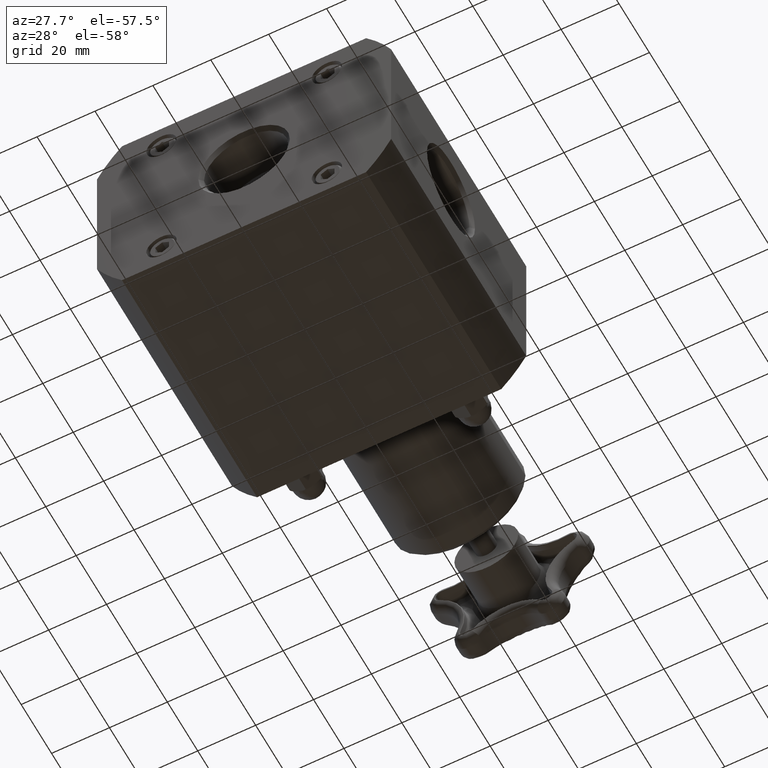
[diagram: clean part render]
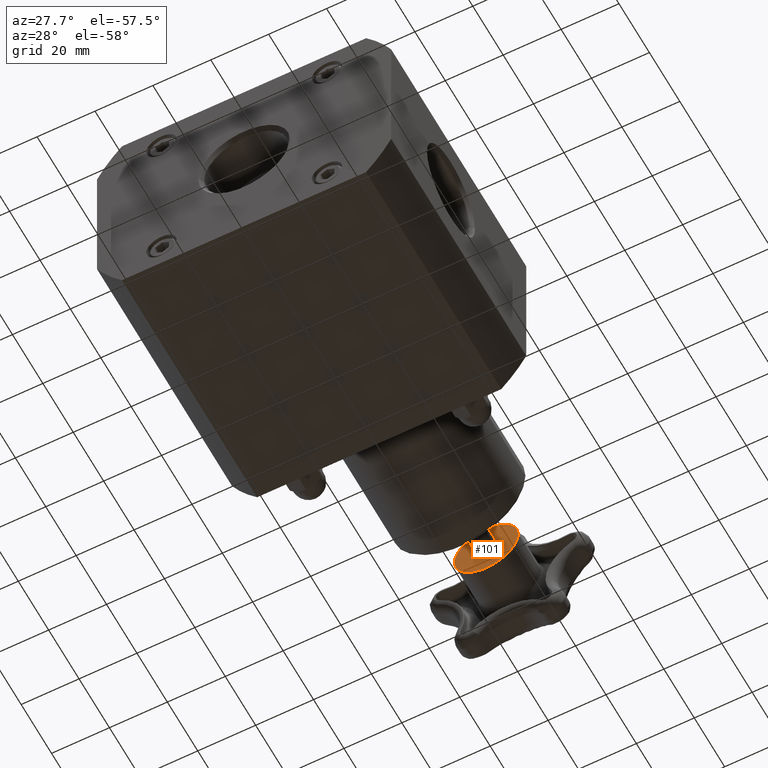
[diagram: same view with one face highlighted and labeled with its STEP entity id]
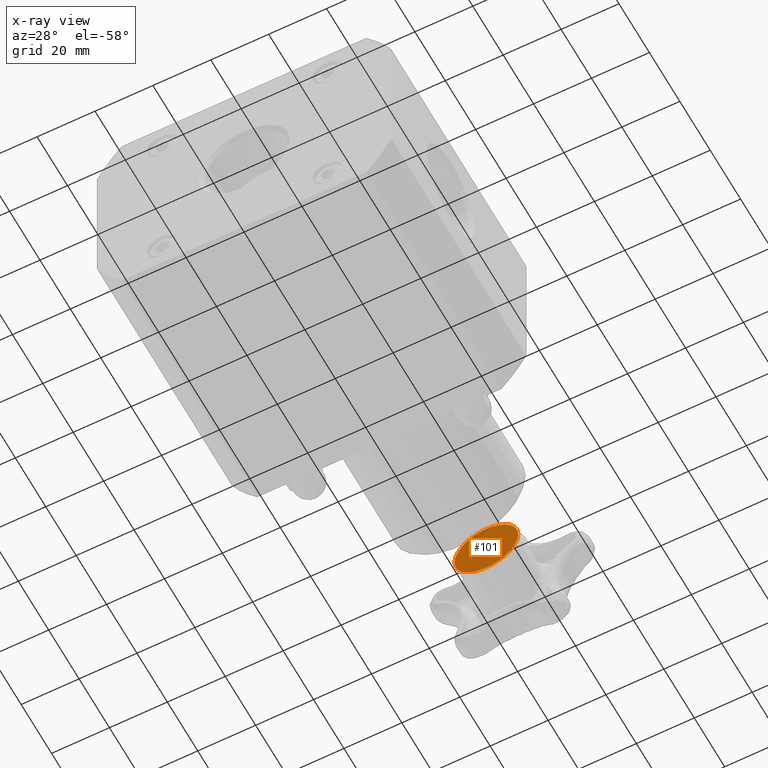
[diagram: x-ray of the same camera — body ghosted, the highlighted face saturated]
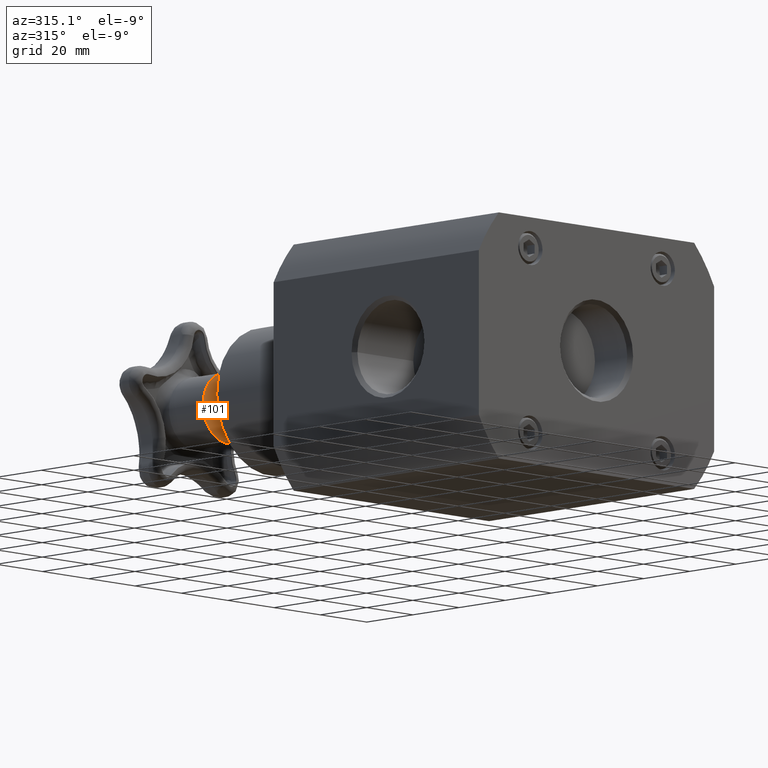
[diagram: same view with one face highlighted and labeled with its STEP entity id]
A machine part, auxiliary view. The second image highlights one B-rep face of the part: STEP entity #101.
The next image is the same camera in x-ray: the body ghosted, the highlighted face saturated — about 4% of this face is hidden behind the body in this view.
A second angle (auxiliary view) of the same face is appended — the face is thin or edge-on in the first view.
In plain terms, the highlighted planar face has unit normal (0, 1, 0).
Its self-contained STEP definition (entity closure, byte-faithful):
#74=CARTESIAN_POINT('',(-4.186314E-015,6.275500000000000,4.992841E-017));
#75=DIRECTION('',(0.0,1.0,0.0));
#76=DIRECTION('',(0.0,0.0,1.0));
#77=AXIS2_PLACEMENT_3D('',#74,#75,#76);
#78=PLANE('',#77);
#79=CARTESIAN_POINT('',(0.434999999999996,6.275500000000001,4.992841E-017));
#80=VERTEX_POINT('',#79);
#81=CARTESIAN_POINT('',(-4.186314E-015,6.275500000000000,4.992841E-017));
#82=DIRECTION('',(0.0,-1.0,0.0));
#83=DIRECTION('',(1.0,0.0,0.0));
#84=AXIS2_PLACEMENT_3D('',#81,#82,#83);
#85=CIRCLE('',#84,0.435000000000000);
#86=EDGE_CURVE('',#80,#80,#85,.T.);
#87=ORIENTED_EDGE('',*,*,#86,.T.);
#88=EDGE_LOOP('',(#87));
#89=FACE_OUTER_BOUND('',#88,.T.);
#90=CARTESIAN_POINT('',(-0.146500000000004,6.275500000000000,6.786949E-017));
#91=VERTEX_POINT('',#90);
#92=CARTESIAN_POINT('',(-4.216965E-015,6.275500000000000,4.992841E-017));
#93=DIRECTION('',(0.0,1.0,0.0));
#94=DIRECTION('',(1.0,0.0,0.0));
#95=AXIS2_PLACEMENT_3D('',#92,#93,#94);
#96=CIRCLE('',#95,0.146500000000000);
#97=EDGE_CURVE('',#91,#91,#96,.T.);
#98=ORIENTED_EDGE('',*,*,#97,.T.);
#99=EDGE_LOOP('',(#98));
#100=FACE_BOUND('',#99,.T.);
#101=ADVANCED_FACE('',(#89,#100),#78,.F.);